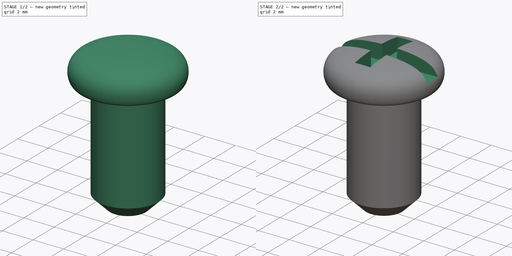
[diagram: build sequence overview — one tinted view per stage of 2, left to right]
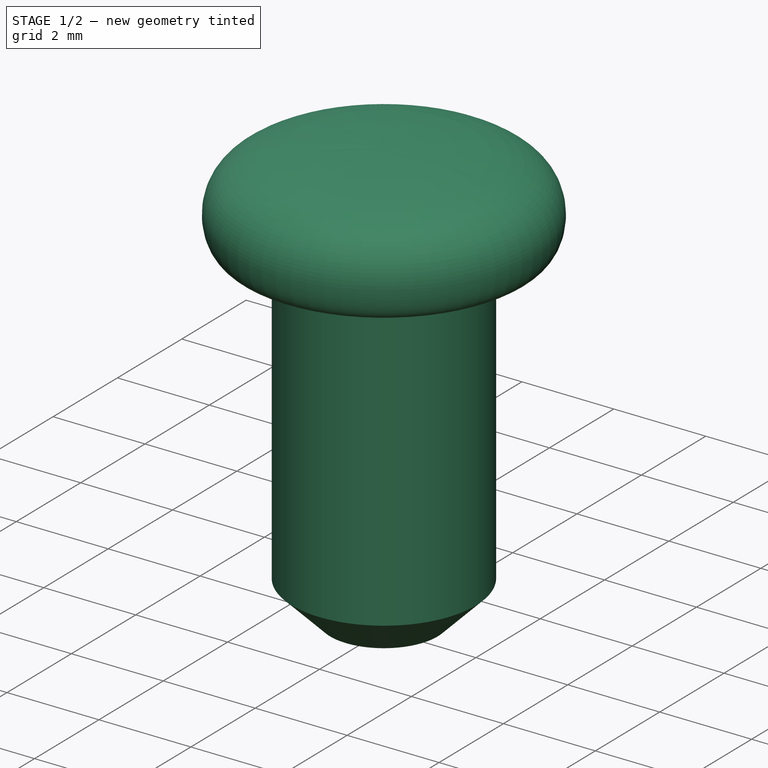
[diagram: stage 1 of 2 — iso view after this stage's code; geometry added in this stage tinted green]
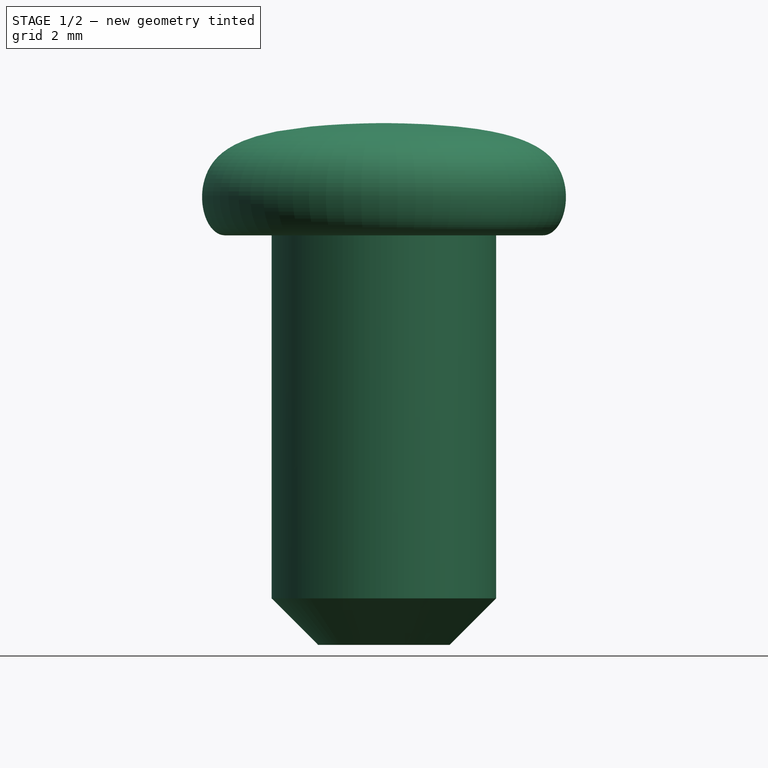
[diagram: stage 1 of 2 — front view after this stage's code; geometry added in this stage tinted green]
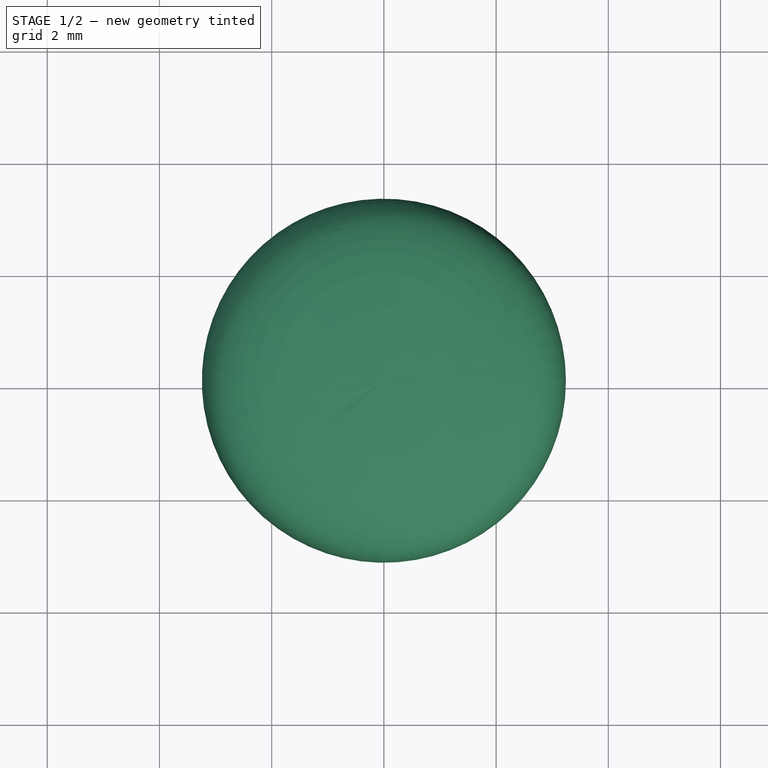
[diagram: stage 1 of 2 — top view after this stage's code; geometry added in this stage tinted green]
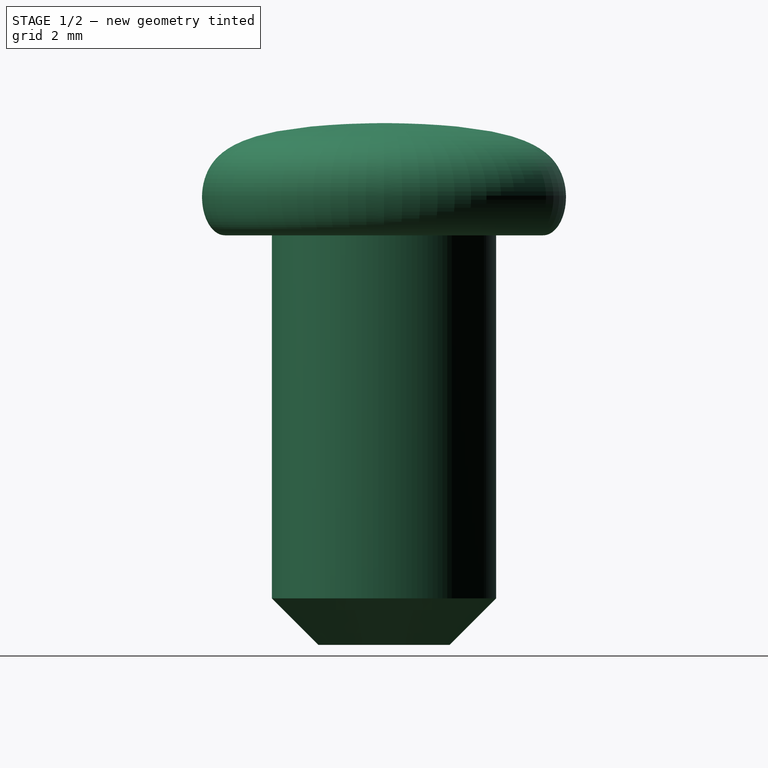
[diagram: stage 1 of 2 — right view after this stage's code; geometry added in this stage tinted green]
FCSTD DOCUMENT  (FreeCAD 0.19R23058 (Git))
Label: screw
License: All rights reserved
LicenseURL: http://en.wikipedia.org/wiki/All_rights_reserved
objects: Sketcher::SketchObject×2, PartDesign::Revolution×1, PartDesign::Pocket×1, PartDesign::Line×1, PartDesign::Body×1
note: 8 computed .brp shape members not serialized (recipe doc carries the construction recipe); baked Part::Feature solids carry a one-line shape summary decoded from their .brp

FEATURE [Sketcher::SketchObject] Sketch
  MapMode = 5
  Placement = pos=(0,0,0) rot=(1,0,0;1.5708rad)
  Support = -> [XZ_Plane]
  sketch-geometry (16):
    g0-g4: Circle [constr] x5 (B-spline internal-alignment scaffolding for g5; pole/knot coordinates omitted)
    g5: BSplineCurve PolesCount=5 KnotsCount=3 Degree=3 IsPeriodic=0
    g6: GeomPoint [constr] X=0 Y=2 Z=0
    g7: GeomPoint [constr] X=3.14305 Y=1.1445 Z=0
    g8: GeomPoint [constr] X=2.83408 Y=0 Z=0
    g9: LineSegment StartX=2.83408 StartY=0 StartZ=0 EndX=2 EndY=0 EndZ=0
    g10: LineSegment StartX=2 StartY=0 StartZ=0 EndX=2 EndY=-6.47157 EndZ=0
    g11: LineSegment StartX=2 StartY=-6.47157 StartZ=0 EndX=1.17157 EndY=-7.3 EndZ=0
    g12: LineSegment StartX=1.17157 StartY=-7.3 StartZ=0 EndX=0 EndY=-7.3 EndZ=0
    g13: LineSegment StartX=0 StartY=-7.3 StartZ=0 EndX=0 EndY=2 EndZ=0
    g14: LineSegment [constr] StartX=3.25 StartY=0 StartZ=0 EndX=3.25 EndY=2 EndZ=0
    g15: LineSegment [constr] StartX=0 StartY=2 StartZ=0 EndX=3.25 EndY=2 EndZ=0
  constraints (30):
    c: Radius(g0) = 4
    c: Equal(g0, g1-g4) x4
    c: InternalAlignment(g0-g4 -> g5) x5
    c: InternalAlignment(g6,g5)
    c: InternalAlignment(g7,g5)
    c: InternalAlignment(g8,g5)
    c: PointOnObject(g5,g-1)
    c: PointOnObject(g5,g-2)
    c: PointOnObject(g3,g-1)
    c: Horizontal(g9)
    c: Coincident(g9,g10)
    c: Vertical(g10)
    c: Coincident(g10,g11)
    c: Coincident(g11,g12)
    c: Horizontal(g12)
    c: Coincident(g12,g13)
    c: Coincident(g13,g5)
    c: Vertical(g13)
    c: Angle(g11,g12) = 2.35619
    c: Equal(g12,g11)
    c: DistanceX(g12,g10) = 2
    c: DistanceY(g12,g5) = 9.3
    c: Coincident(g9,g5)
    c: DistanceY(g-1,g5) = 2
    c: PointOnObject(g14,g-1)
    c: Vertical(g14)
    c: Coincident(g15,g5)
    c: Coincident(g14,g15)
    c: Horizontal(g15)
    c: DistanceX(g15,g15) = 3.25
FEATURE [PartDesign::Revolution] Revolution
  Angle = 360
  Axis = (0,-2e-16,1)
  Base = (0,0,0)
  Placement = pos=(0,0,0) rot=(1,0,0;1.5708rad)
  Profile = -> Sketch
  ReferenceAxis = -> Sketch [V_Axis]
  Reversed = true
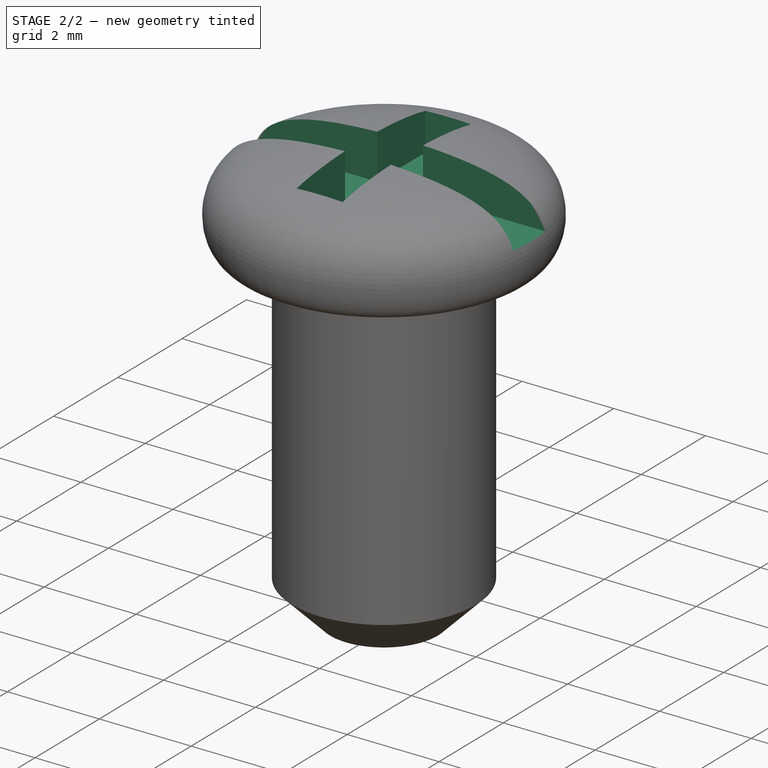
[diagram: stage 2 of 2 — iso view after this stage's code; geometry added in this stage tinted green]
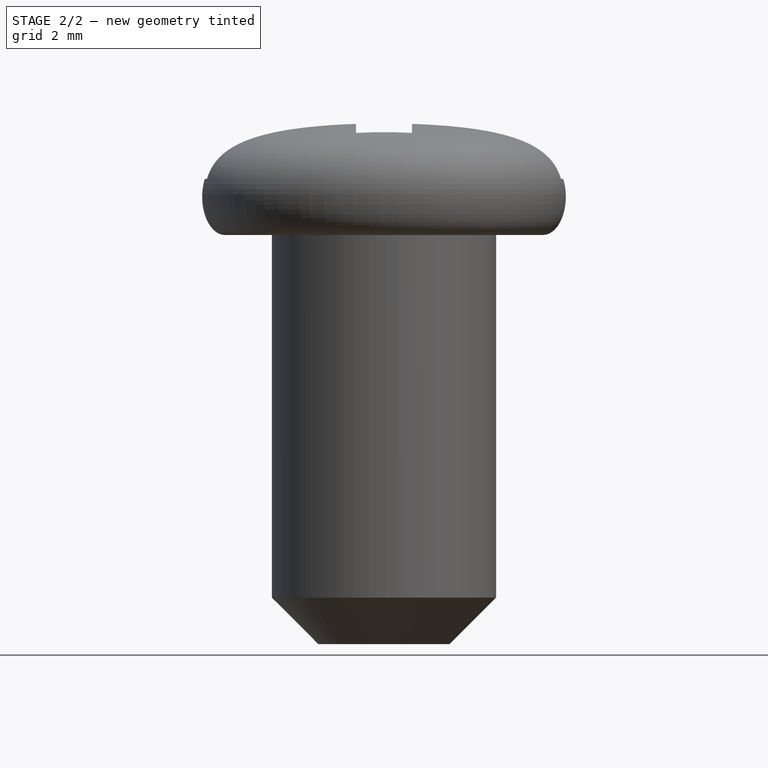
[diagram: stage 2 of 2 — front view after this stage's code; geometry added in this stage tinted green]
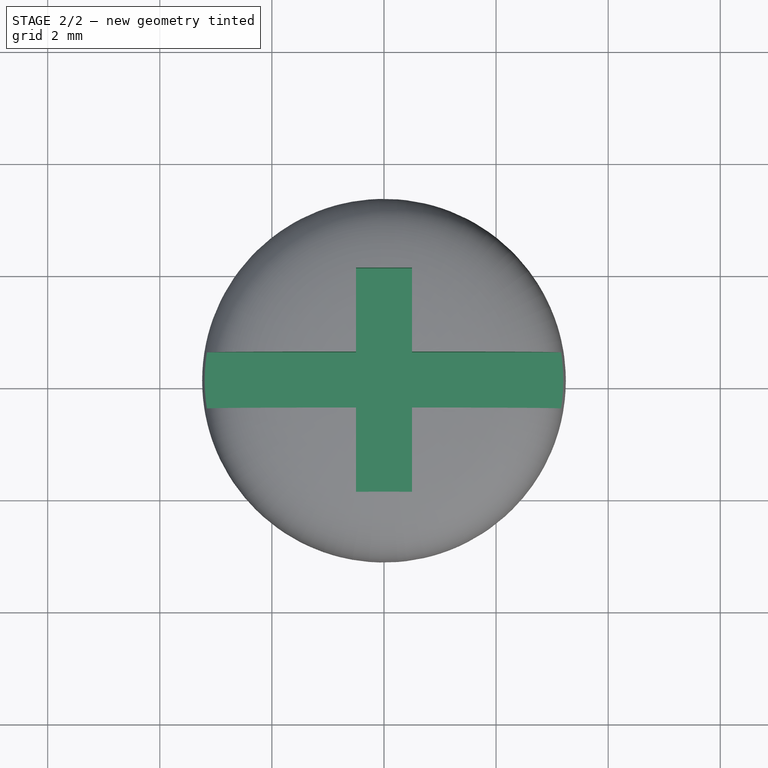
[diagram: stage 2 of 2 — top view after this stage's code; geometry added in this stage tinted green]
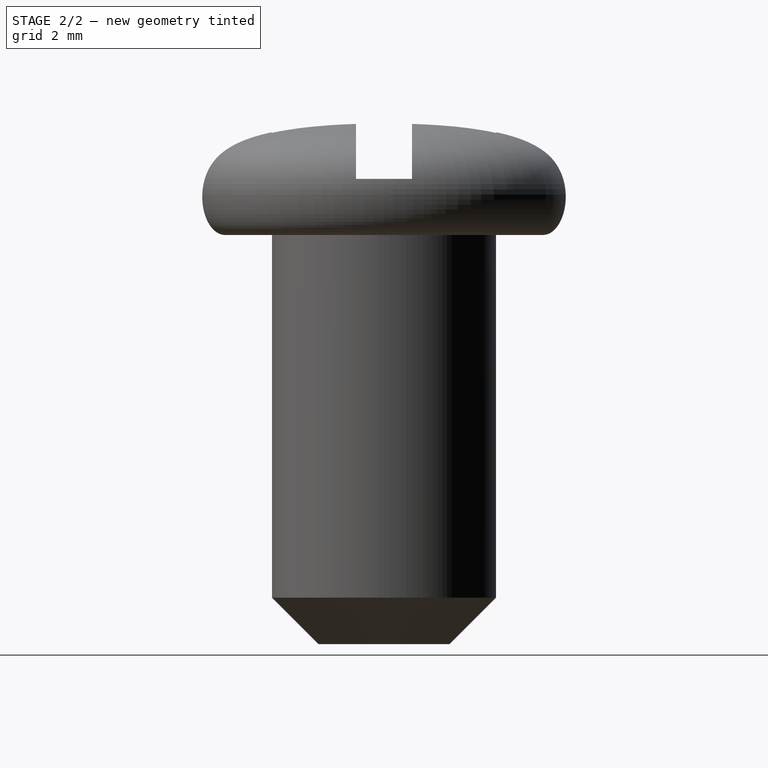
[diagram: stage 2 of 2 — right view after this stage's code; geometry added in this stage tinted green]
FEATURE [Sketcher::SketchObject] Sketch001
  AttachmentOffset = pos=(0,0,1) rot=(0,0,1;0rad)
  MapMode = 5
  Placement = pos=(0,0,1) rot=(0,0,1;0rad)
  Support = -> [XY_Plane]
  sketch-geometry (16):
    g0: LineSegment StartX=-3.5 StartY=0.5 StartZ=0 EndX=-0.5 EndY=0.5 EndZ=0
    g1: LineSegment StartX=-0.5 StartY=0.5 StartZ=0 EndX=-0.5 EndY=2 EndZ=0
    g2: LineSegment StartX=-0.5 StartY=2 StartZ=0 EndX=0.5 EndY=2 EndZ=0
    g3: LineSegment StartX=0.5 StartY=2 StartZ=0 EndX=0.5 EndY=0.5 EndZ=0
    g4: LineSegment StartX=0.5 StartY=0.5 StartZ=0 EndX=3.5 EndY=0.5 EndZ=0
    g5: LineSegment StartX=3.5 StartY=0.5 StartZ=0 EndX=3.5 EndY=-0.5 EndZ=0
    g6: LineSegment StartX=3.5 StartY=-0.5 StartZ=0 EndX=0.5 EndY=-0.5 EndZ=0
    g7: LineSegment StartX=0.5 StartY=-0.5 StartZ=0 EndX=0.5 EndY=-2 EndZ=0
    g8: LineSegment StartX=0.5 StartY=-2 StartZ=0 EndX=-0.5 EndY=-2 EndZ=0
    g9: LineSegment StartX=-0.5 StartY=-2 StartZ=0 EndX=-0.5 EndY=-0.5 EndZ=0
    g10: LineSegment StartX=-0.5 StartY=-0.5 StartZ=0 EndX=-3.5 EndY=-0.5 EndZ=0
    g11: LineSegment StartX=-3.5 StartY=-0.5 StartZ=0 EndX=-3.5 EndY=0.5 EndZ=0
    g12: LineSegment [constr] StartX=-0.5 StartY=-0.5 StartZ=0 EndX=-0.5 EndY=0.5 EndZ=0
    g13: LineSegment [constr] StartX=-0.5 StartY=0.5 StartZ=0 EndX=0.5 EndY=0.5 EndZ=0
    g14: LineSegment [constr] StartX=0.5 StartY=0.5 StartZ=0 EndX=0.5 EndY=-0.5 EndZ=0
    g15: LineSegment [constr] StartX=0.5 StartY=-0.5 StartZ=0 EndX=-0.5 EndY=-0.5 EndZ=0
  constraints (42):
    c: Horizontal(g0)
    c: Coincident(g0,g1)
    c: Vertical(g1)
    c: Coincident(g1,g2)
    c: Horizontal(g2)
    c: Coincident(g2,g3)
    c: Vertical(g3)
    c: Coincident(g3,g4)
    c: Horizontal(g4)
    c: Coincident(g4,g5)
    c: Vertical(g5)
    c: Coincident(g5,g6)
    c: Horizontal(g6)
    c: Coincident(g6,g7)
    c: Vertical(g7)
    c: Coincident(g7,g8)
    c: Horizontal(g8)
    c: Coincident(g8,g9)
    c: Vertical(g9)
    c: Coincident(g9,g10)
    c: Horizontal(g10)
    c: Coincident(g10,g11)
    c: Coincident(g11,g0)
    c: Vertical(g11)
    c: Coincident(g9,g12)
    c: Coincident(g12,g0)
    c: Coincident(g12,g13)
    c: Coincident(g13,g3)
    c: Coincident(g13,g14)
    c: Coincident(g14,g6)
    c: Vertical(g14)
    c: Coincident(g14,g15)
    c: Coincident(g15,g12)
    c: Horizontal(g15)
    c: Symmetric(g9,g0,g-1)
    c: Symmetric(g0,g3,g-2)
    c: Equal(g15,g14)
    c: DistanceX(g8,g8) = 1
    c: Equal(g9,g1)
    c: Equal(g0,g4)
    c: DistanceY(g8,g1) = 4
    c: DistanceX(g0,g4) = 7
FEATURE [PartDesign::Pocket] Pocket
  BaseFeature = -> Revolution
  Length = 5
  Length2 = 100
  Placement = pos=(0,0,0) rot=(1,0,0;1.5708rad)
  Profile = -> Sketch001
  Reversed = true
  Type = 0
FEATURE [PartDesign::Line] HoleAxis_1  label="Screw"
  AttacherType = Attacher::AttachEngineLine
  AttachmentOffset = pos=(0,0,0) rot=(1,0,0;3.14159rad)
  Length = 5.63627
  MapMode = 19
  ResizeMode = 1
  Support = -> [Pocket]
FEATURE [PartDesign::Body] Body
  Group = -> [Sketch,Revolution,Sketch001,Pocket,HoleAxis_1]
  Origin = -> Origin
  Tip = -> Pocket
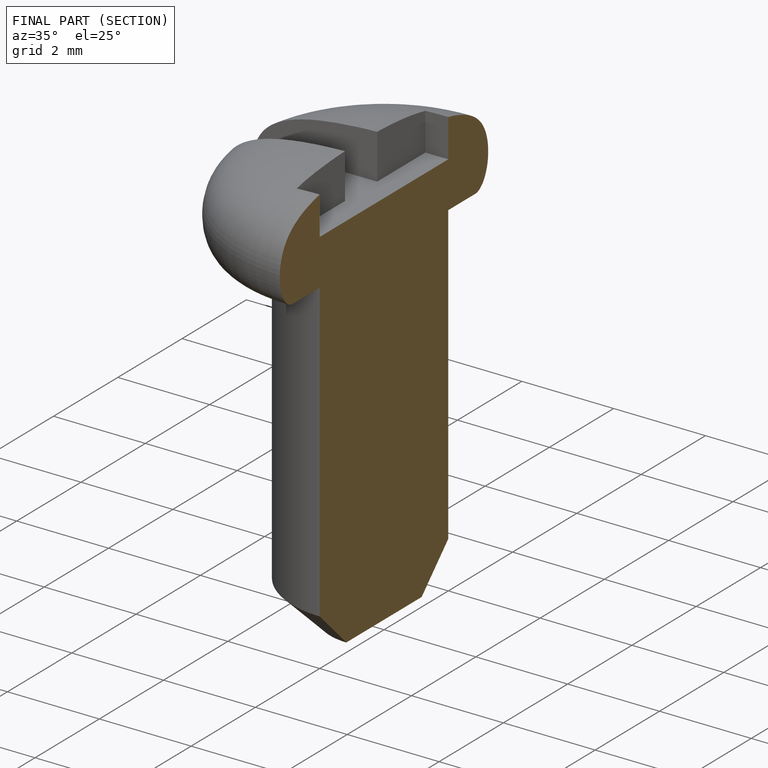
[diagram: finished part — half-section view (interior)]
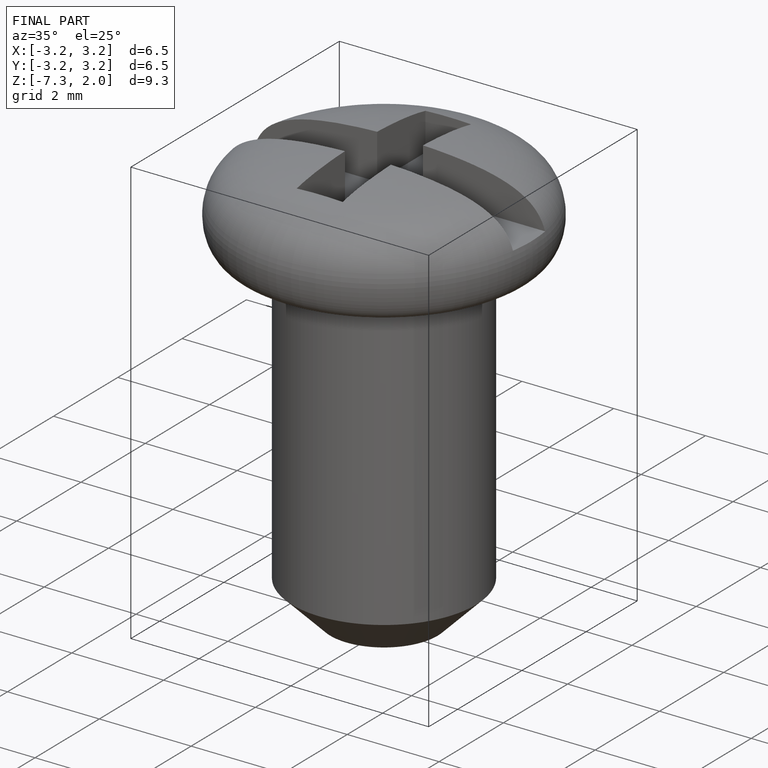
[diagram: finished part — iso view with bounding-box wireframe]
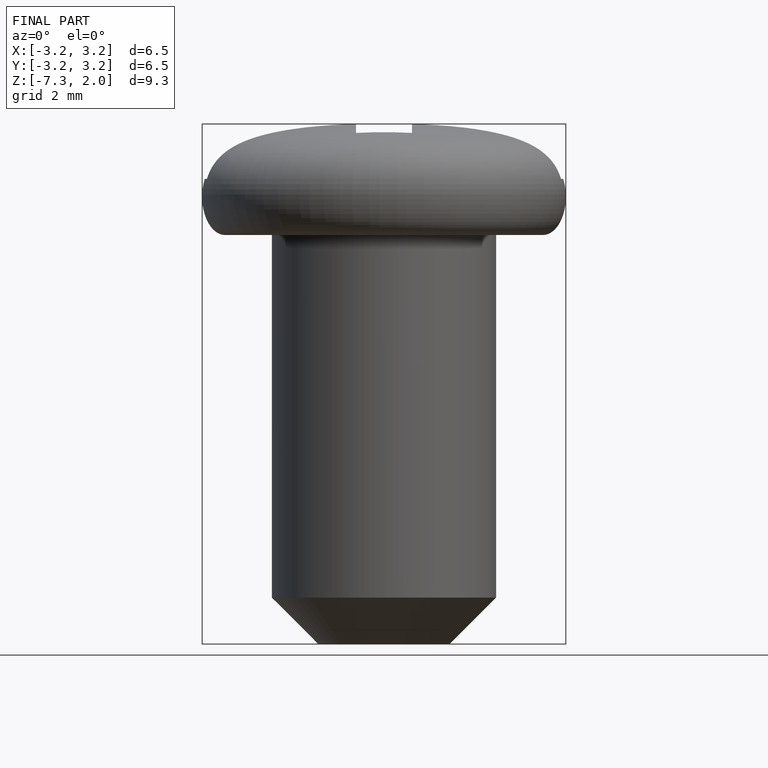
[diagram: finished part — front view with bounding-box wireframe]
